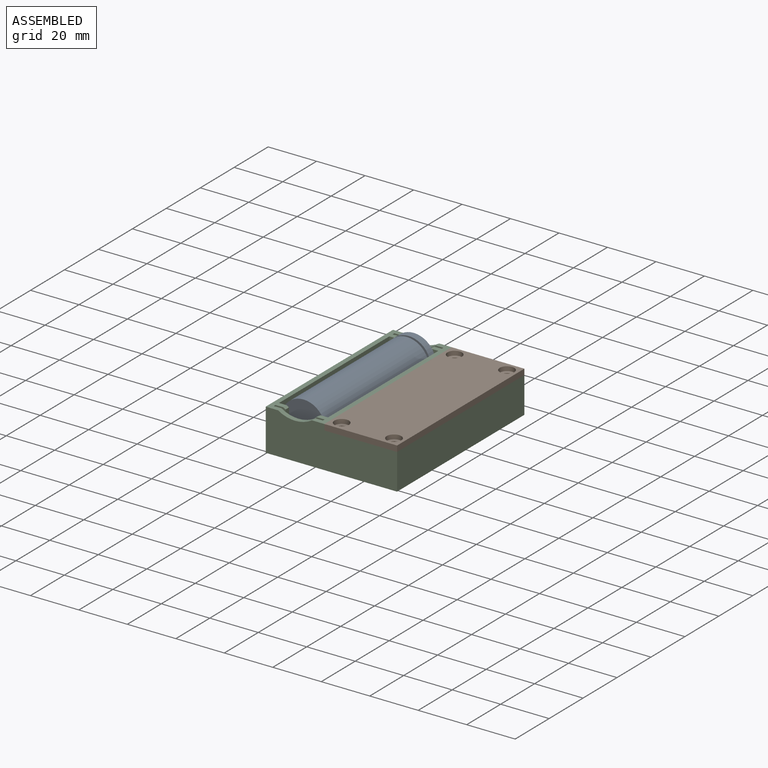
[diagram: assembled view]
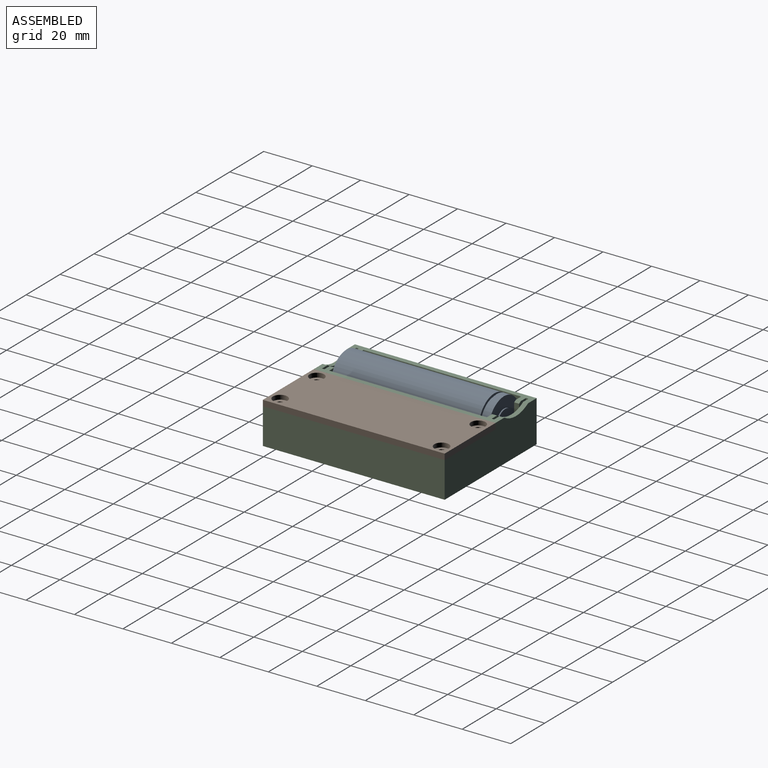
[diagram: assembled view, second angle]
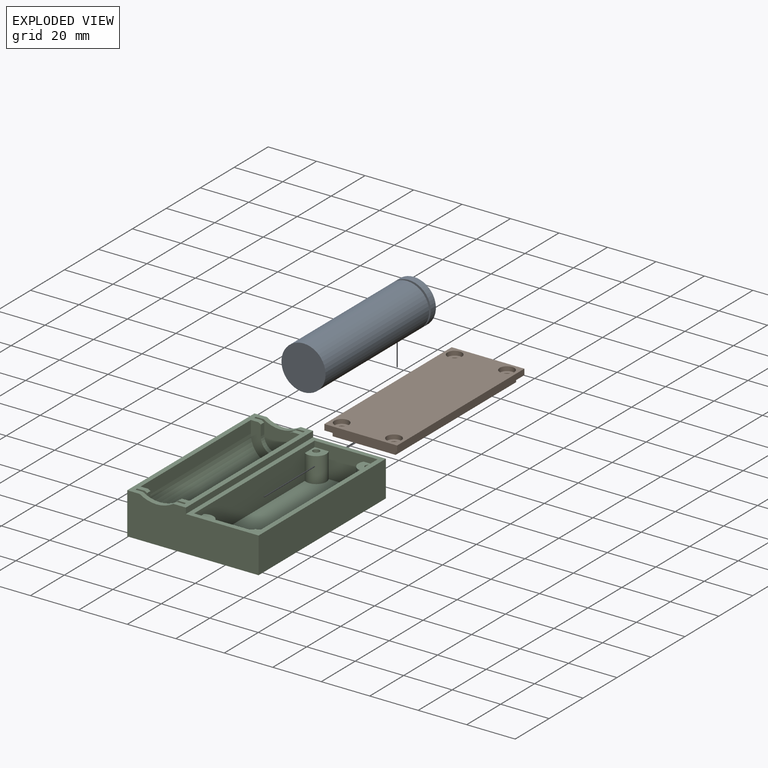
[diagram: exploded view]
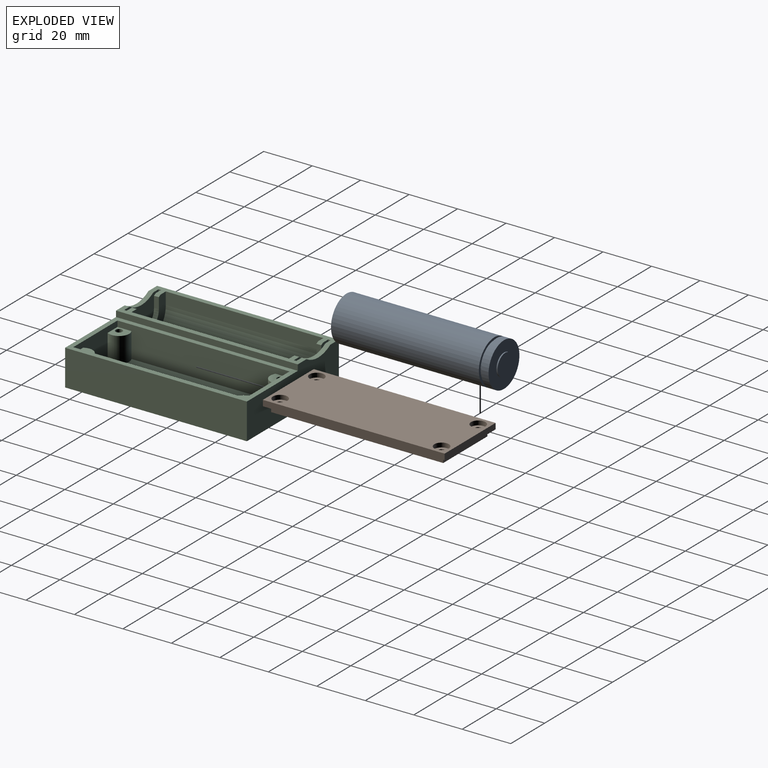
[diagram: exploded view, second angle]
ASSEMBLY  parts=3 mates=2
PART A: 9 faces, bbox 18.2x65.5x18.2 mm
  f0: plane 18.2x18.2mm, normal (0,-1,0), area 54mm2, adj f1,f6
  f1: cylinder r=8.1mm len=16.2mm, axis (0,1,0), area 50.9mm2, adj f0,f2
  f2: plane 18.2x18.2mm, normal (0,1,0), area 54mm2, adj f1,f3
  f3: cylinder r=9.1mm len=61mm, axis (0,1,0), area 3487.8mm2, adj f2,f4
  f4: plane 18.2x18.2mm, normal (0,-1,0), area 260.2mm2, adj f3
  f5: plane 18.2x18.2mm, normal (0,1,0), area 196.5mm2, adj f6,f7
  f6: cylinder r=9.1mm len=18.2mm, axis (0,1,0), area 171.5mm2, adj f0,f5
  f7: cylinder r=4.5mm len=9mm, axis (0,-1,0), area 14.1mm2, adj f5,f8
  f8: plane 9x9mm, normal (0,1,0), area 63.6mm2, adj f7
PART B: 32 faces, bbox 30x75x4.8 mm
  f0: plane 75x30mm, normal (0,0,-1), area 404mm2, adj f1,f2,f3,f4,f6,f7,f8,f17
  f1: plane 30x2.4mm, normal (0,1,0), area 72mm2, adj f0,f2,f4,f5
  f2: plane 75x2.4mm, normal (-1,0,0), area 180mm2, adj f0,f1,f3,f5
  f3: plane 30x2.4mm, normal (0,-1,0), area 72mm2, adj f0,f2,f4,f5
  f4: plane 75x2.4mm, normal (1,0,0), area 180mm2, adj f0,f1,f3,f5
  f5: plane 75x30mm, normal (0,0,1), area 2136.9mm2, adj f1,f2,f3,f4,f22,f25,f28,f31
  f6: plane 26x2.4mm, normal (0,-1,0), area 62.4mm2, adj f0,f7,f17,f18
  f7: plane 71x2.4mm, normal (-1,0,0), area 170.4mm2, adj f0,f6,f8,f18
  f8: plane 26x2.4mm, normal (0,1,0), area 62.4mm2, adj f0,f7,f17,f18
  f9: plane 58.21x2.4mm, normal (1,0,0), area 139.7mm2, adj f10,f16,f18,f19
  f10: cylinder r=4.2mm len=4.4mm, axis (0,0,1), area 16.8mm2, adj f9,f11,f18,f19
  f11: plane 13.21x2.4mm, normal (0,1,0), area 31.7mm2, adj f10,f12,f18,f19
  f12: cylinder r=4.2mm len=4.4mm, axis (0,0,1), area 16.8mm2, adj f11,f13,f18,f19
  f13: plane 58.21x2.4mm, normal (-1,0,0), area 139.7mm2, adj f12,f14,f18,f19
  f14: cylinder r=4.2mm len=4.4mm, axis (0,0,1), area 16.8mm2, adj f13,f15,f18,f19
  f15: plane 13.21x2.4mm, normal (0,-1,0), area 31.7mm2, adj f14,f16,f18,f19
  f16: cylinder r=4.2mm len=4.4mm, axis (0,0,1), area 16.8mm2, adj f9,f15,f18,f19
  f17: plane 71x2.4mm, normal (1,0,0), area 170.4mm2, adj f0,f6,f8,f18
  f18: plane 71x26mm, normal (0,0,-1), area 406mm2, adj f6,f7,f8,f9,f10,f11,f12,f13
  f19: plane 67x22mm, normal (0,0,-1), area 1411.7mm2, adj f9,f10,f11,f12,f13,f14,f15,f16
  f20: cylinder r=1.5mm len=3mm, axis (0,0,1), area 28.3mm2, adj f18,f21
  f21: plane 6x6mm, normal (0,0,1), area 21.2mm2, adj f20,f22
  f22: cylinder r=3mm len=6mm, axis (0,0,1), area 33.9mm2, adj f5,f21
  f23: cylinder r=1.5mm len=3mm, axis (0,0,1), area 28.3mm2, adj f18,f24
  f24: plane 6x6mm, normal (0,0,1), area 21.2mm2, adj f23,f25
  f25: cylinder r=3mm len=6mm, axis (0,0,1), area 33.9mm2, adj f5,f24
  f26: cylinder r=1.5mm len=3mm, axis (0,0,1), area 28.3mm2, adj f18,f27
  f27: plane 6x6mm, normal (0,0,1), area 21.2mm2, adj f26,f28
  f28: cylinder r=3mm len=6mm, axis (0,0,1), area 33.9mm2, adj f5,f27
  f29: cylinder r=1.5mm len=3mm, axis (0,0,1), area 28.3mm2, adj f18,f30
  f30: plane 6x6mm, normal (0,0,1), area 21.2mm2, adj f29,f31
  f31: cylinder r=3mm len=6mm, axis (0,0,1), area 33.9mm2, adj f5,f30
PART C: 57 faces, bbox 54.2x75x17.2 mm
  f0: plane 54.2x17.2mm, normal (0,1,0), area 840.9mm2, adj f1,f2,f3,f11,f12,f34,f35,f56
  f1: plane 75x5.1mm, normal (0,0,1), area 174.8mm2, adj f0,f3,f10,f21,f22,f23,f27,f28
  f2: plane 75x5.1mm, normal (0,0,1), area 174.8mm2, adj f0,f10,f11,f20,f21,f23,f26,f27
  f3: plane 75x2.4mm, normal (1,0,0), area 180mm2, adj f0,f1,f10,f34
  f4: plane 26x12.8mm, normal (0,-1,0), area 212.6mm2, adj f5,f7,f9,f34,f36,f37,f39,f40
  f5: plane 6.4x6.4mm, normal (0,0,1), area 30.1mm2, adj f4,f39,f40,f49
  f6: plane 6.4x6.4mm, normal (0,0,1), area 30.1mm2, adj f8,f38,f39,f47
  f7: plane 71x26mm, normal (0,0,1), area 1700.8mm2, adj f4,f8,f9,f36,f38,f39,f40,f41
  f8: plane 26x12.8mm, normal (0,1,0), area 212.6mm2, adj f6,f7,f9,f34,f38,f39,f41,f42
  f9: plane 71x12.8mm, normal (-1,0,0), area 788.6mm2, adj f4,f7,f8,f34,f36,f37,f41,f42
  f10: plane 54.2x17.2mm, normal (0,-1,0), area 840.9mm2, adj f1,f2,f3,f11,f12,f34,f35,f55
  f11: plane 75x17.2mm, normal (-1,0,0), area 1290mm2, adj f0,f2,f10,f12
  f12: plane 75x54.2mm, normal (0,0,-1), area 4065mm2, adj f0,f10,f11,f35
  f13: plane 20.2x1mm, normal (0,0,1), area 20.2mm2, adj f20,f21,f22,f23
  f14: cylinder r=6mm len=12mm, axis (0,-1,0), area 37.7mm2, adj f18,f19,f23,f33
  f15: cylinder r=10.1mm len=65mm, axis (0,1,0), area 2062.5mm2, adj f30,f31,f32,f33
  f16: plane 20.2x1mm, normal (0,0,1), area 20.2mm2, adj f26,f27,f28,f29
  f17: cylinder r=6mm len=12mm, axis (0,1,0), area 37.7mm2, adj f24,f25,f29,f30
  f18: plane 4.52x2mm, normal (-1,0,0), area 9mm2, adj f14,f23,f33,f52
  f19: plane 4.52x2mm, normal (1,0,0), area 9mm2, adj f14,f23,f33,f51
  f20: plane 15.2x1mm, normal (1,0,0), area 15.2mm2, adj f2,f13,f21,f23
  f21: plane 20.2x15.2mm, normal (0,-1,0), area 287.7mm2, adj f1,f2,f13,f20,f22,f56
  f22: plane 15.2x1mm, normal (-1,0,0), area 15.2mm2, adj f1,f13,f21,f23
  f23: plane 20.2x15.2mm, normal (0,1,0), area 188.7mm2, adj f1,f2,f13,f14,f18,f19,f20,f22
  f24: plane 4.52x2mm, normal (1,0,0), area 9mm2, adj f17,f29,f30,f53
  f25: plane 4.52x2mm, normal (-1,0,0), area 9mm2, adj f17,f29,f30,f54
  f26: plane 15.2x1mm, normal (1,0,0), area 15.2mm2, adj f2,f16,f27,f29
  f27: plane 20.2x15.2mm, normal (0,1,0), area 287.7mm2, adj f1,f2,f16,f26,f28,f55
  f28: plane 15.2x1mm, normal (-1,0,0), area 15.2mm2, adj f1,f16,f27,f29
  f29: plane 20.2x15.2mm, normal (0,-1,0), area 188.7mm2, adj f1,f2,f16,f17,f24,f25,f26,f28
  f30: plane 20.2x15.2mm, normal (0,1,0), area 144.9mm2, adj f1,f2,f15,f17,f24,f25,f31,f32
  f31: plane 65x5.1mm, normal (-1,0,0), area 331.5mm2, adj f1,f15,f30,f33
  f32: plane 65x5.1mm, normal (1,0,0), area 331.5mm2, adj f2,f15,f30,f33
  f33: plane 20.2x15.2mm, normal (0,-1,0), area 144.9mm2, adj f1,f2,f14,f15,f18,f19,f31,f32
  f34: plane 75x30mm, normal (0,0,1), area 404mm2, adj f0,f3,f4,f8,f9,f10,f35,f39
  f35: plane 75x14.8mm, normal (1,0,0), area 1110mm2, adj f0,f10,f12,f34
  f36: cylinder r=4.2mm len=10.4mm, axis (0,0,-1), area 116.8mm2, adj f4,f7,f9,f37
  f37: plane 6.4x6.4mm, normal (0,0,1), area 30.1mm2, adj f4,f9,f36,f45
  f38: cylinder r=4.2mm len=10.4mm, axis (0,0,-1), area 116.8mm2, adj f6,f7,f8,f39
  f39: plane 71x12.8mm, normal (1,0,0), area 788.6mm2, adj f4,f5,f6,f7,f8,f34,f38,f40
  f40: cylinder r=4.2mm len=10.4mm, axis (0,0,-1), area 116.8mm2, adj f4,f5,f7,f39
  f41: cylinder r=4.2mm len=10.4mm, axis (0,0,-1), area 116.8mm2, adj f7,f8,f9,f42
  f42: plane 6.4x6.4mm, normal (0,0,1), area 30.1mm2, adj f8,f9,f41,f43
  f43: cylinder r=1.4mm len=10.8mm, axis (0,0,1), area 95mm2, adj f42,f44
  f44: plane 2.8x2.8mm, normal (0,0,1), area 6.2mm2, adj f43
  f45: cylinder r=1.4mm len=10.8mm, axis (0,0,1), area 95mm2, adj f37,f46
  f46: plane 2.8x2.8mm, normal (0,0,1), area 6.2mm2, adj f45
  f47: cylinder r=1.4mm len=10.8mm, axis (0,0,1), area 95mm2, adj f6,f48
  f48: plane 2.8x2.8mm, normal (0,0,1), area 6.2mm2, adj f47
  f49: cylinder r=1.4mm len=10.8mm, axis (0,0,1), area 95mm2, adj f5,f50
  f50: plane 2.8x2.8mm, normal (0,0,1), area 6.2mm2, adj f49
  f51: cylinder r=13.04mm len=2mm, axis (0,1,0), area 2.3mm2, adj f2,f19,f23,f33
  f52: cylinder r=13.04mm len=2mm, axis (0,1,0), area 2.3mm2, adj f1,f18,f23,f33
  f53: cylinder r=13.04mm len=2mm, axis (0,1,0), area 2.3mm2, adj f2,f24,f29,f30
  f54: cylinder r=13.04mm len=2mm, axis (0,1,0), area 2.3mm2, adj f1,f25,f29,f30
  f55: cylinder r=13.04mm len=14mm, axis (0,1,0), area 29.6mm2, adj f1,f2,f10,f27
  f56: cylinder r=13.04mm len=14mm, axis (0,1,0), area 29.6mm2, adj f0,f1,f2,f21
PLACE A t=(-26.5,-25.85,-19.37)mm
PLACE B t=(0.6,-25.85,-16.67)mm
PLACE C t=(-26.5,11.65,-19.37)mm
MATE fastened A.f1 <-> C.f14  axis (0,-1,0) through (-26.5,-58.35,-19.37)mm
MATE fastened B.f10 <-> C.f47  axis (0,0,-1) through (-10.2,-59.15,-19.07)mm
